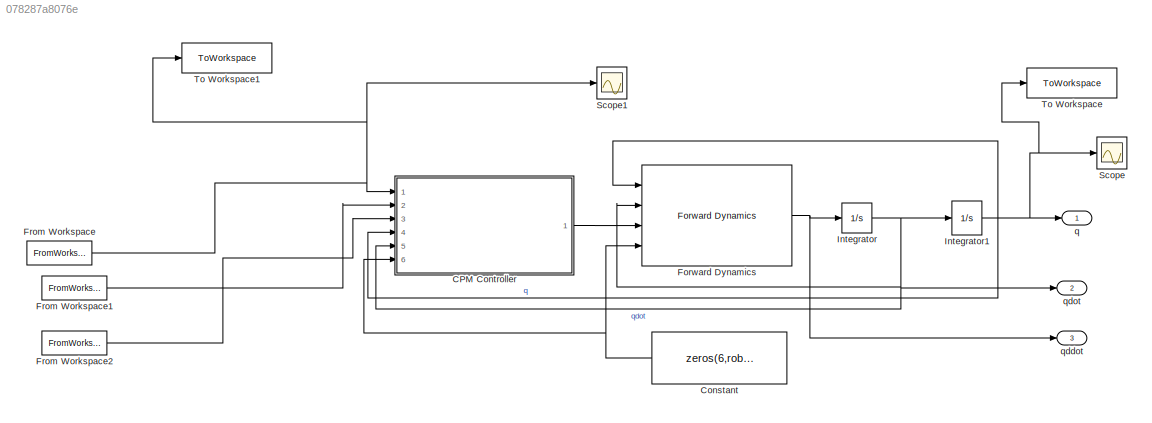
MODEL slx_078287a8076e
KIND model
CONFIG AbsTol = auto
CONFIG EnableMultiTasking = off
CONFIG FixedStep = auto
CONFIG MaxStep = auto
CONFIG MinStep = auto
CONFIG RelTol = 1e-3
CONFIG SampleTimeConstraint = Unconstrained
CONFIG SolverName = VariableStepAuto
CONFIG StartTime = 0.0
CONFIG StopTime = 10.0
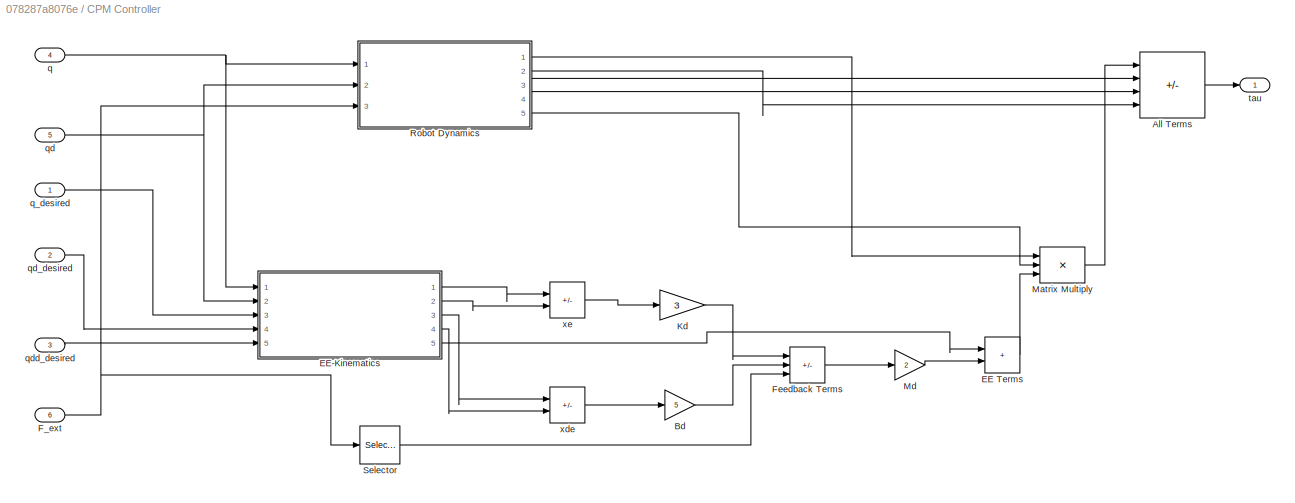
BLOCK [SubSystem] CPM Controller 
  Ports = [6, 1]
  RequestExecContextInheritance = off
BLOCK [Sum] CPM Controller /All Terms
  IconShape = rectangular
  Inputs = |+++-
  Ports = [4, 1]
BLOCK [Gain] CPM Controller /Bd
  Gain = 5
BLOCK [Sum] CPM Controller /EE Terms
  IconShape = rectangular
  Inputs = |++
  Ports = [2, 1]
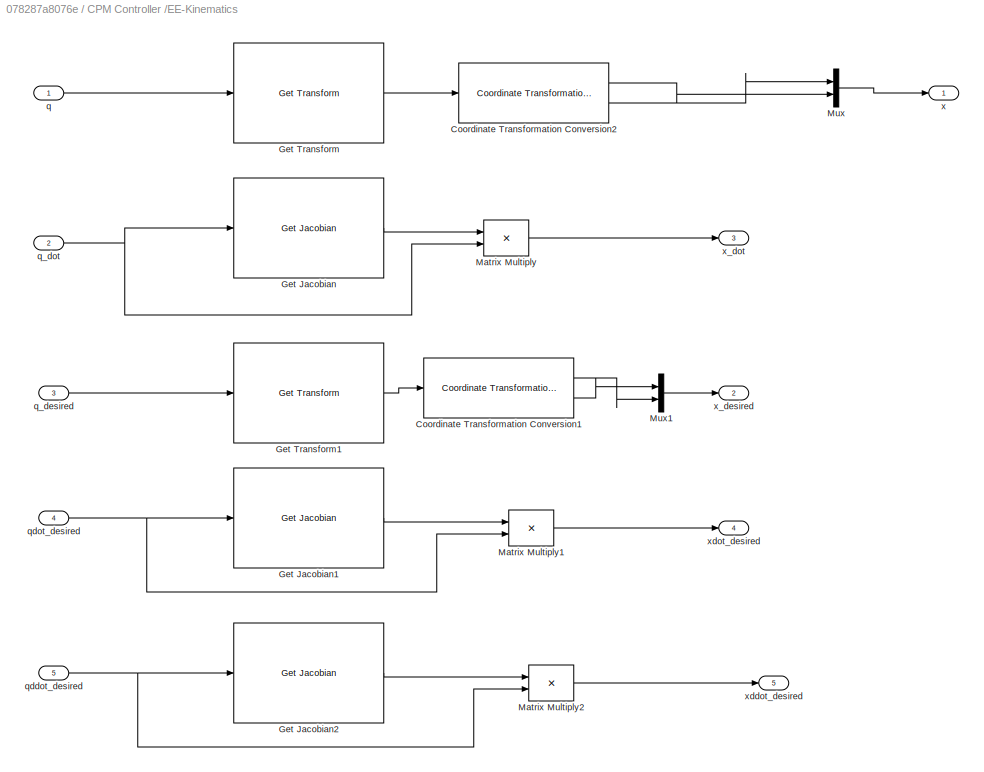
BLOCK [SubSystem] CPM Controller /EE-Kinematics
  Ports = [5, 5]
  RequestExecContextInheritance = off
BLOCK [Reference] CPM Controller /EE-Kinematics/Coordinate Transformation Conversion1  REF=robotcorelib/Coordinate Transformation Conversion
  Ports = [1, 2]
  SourceBlock = robotcorelib/Coordinate Transformation Conversion
  SourceProductBaseCode = NV,RO,RR,UV
  SourceType = robotics.slcore.internal.block.CoordinateTransformationConversion
BLOCK [Reference] CPM Controller /EE-Kinematics/Coordinate Transformation Conversion2  REF=robotcorelib/Coordinate Transformation Conversion
  Ports = [1, 2]
  SourceBlock = robotcorelib/Coordinate Transformation Conversion
  SourceProductBaseCode = NV,RO,RR,UV
  SourceType = robotics.slcore.internal.block.CoordinateTransformationConversion
BLOCK [Reference] CPM Controller /EE-Kinematics/Get Jacobian  REF=robotmaniplib/Get Jacobian
  Ports = [1, 1]
  SourceBlock = robotmaniplib/Get Jacobian
  SourceProductBaseCode = RO
  SourceType = Get Jacobian
BLOCK [Reference] CPM Controller /EE-Kinematics/Get Jacobian1  REF=robotmaniplib/Get Jacobian
  Ports = [1, 1]
  SourceBlock = robotmaniplib/Get Jacobian
  SourceProductBaseCode = RO
  SourceType = Get Jacobian
BLOCK [Reference] CPM Controller /EE-Kinematics/Get Jacobian2  REF=robotmaniplib/Get Jacobian
  Ports = [1, 1]
  SourceBlock = robotmaniplib/Get Jacobian
  SourceProductBaseCode = RO
  SourceType = Get Jacobian
BLOCK [Reference] CPM Controller /EE-Kinematics/Get Transform  REF=robotmaniplib/Get Transform
  Ports = [1, 1]
  SourceBlock = robotmaniplib/Get Transform
  SourceProductBaseCode = RO
  SourceType = Get Transform
BLOCK [Reference] CPM Controller /EE-Kinematics/Get Transform1  REF=robotmaniplib/Get Transform
  Ports = [1, 1]
  SourceBlock = robotmaniplib/Get Transform
  SourceProductBaseCode = RO
  SourceType = Get Transform
BLOCK [Product] CPM Controller /EE-Kinematics/Matrix Multiply
  Multiplication = Matrix(*)
  Ports = [2, 1]
BLOCK [Product] CPM Controller /EE-Kinematics/Matrix Multiply1
  Multiplication = Matrix(*)
  Ports = [2, 1]
BLOCK [Product] CPM Controller /EE-Kinematics/Matrix Multiply2
  Multiplication = Matrix(*)
  Ports = [2, 1]
BLOCK [Mux] CPM Controller /EE-Kinematics/Mux
  DisplayOption = bar
  Inputs = 2
  Ports = [2, 1]
BLOCK [Mux] CPM Controller /EE-Kinematics/Mux1
  DisplayOption = bar
  Inputs = 2
  Ports = [2, 1]
BLOCK [Inport] CPM Controller /EE-Kinematics/q
BLOCK [Inport] CPM Controller /EE-Kinematics/q_desired
  Port = 3
BLOCK [Inport] CPM Controller /EE-Kinematics/q_dot
  Port = 2
BLOCK [Inport] CPM Controller /EE-Kinematics/qddot_desired
  Port = 5
BLOCK [Inport] CPM Controller /EE-Kinematics/qdot_desired
  Port = 4
BLOCK [Outport] CPM Controller /EE-Kinematics/x
BLOCK [Outport] CPM Controller /EE-Kinematics/x_desired
  Port = 2
BLOCK [Outport] CPM Controller /EE-Kinematics/x_dot
  Port = 3
BLOCK [Outport] CPM Controller /EE-Kinematics/xddot_desired
  Port = 5
BLOCK [Outport] CPM Controller /EE-Kinematics/xdot_desired
  Port = 4
BLOCK [Inport] CPM Controller /F_ext
  Port = 6
BLOCK [Sum] CPM Controller /Feedback Terms
  IconShape = rectangular
  Inputs = |---
  Ports = [3, 1]
BLOCK [Gain] CPM Controller /Kd
  Gain = 3
BLOCK [Product] CPM Controller /Matrix Multiply
  Inputs = 3
  Multiplication = Matrix(*)
  Ports = [3, 1]
BLOCK [Gain] CPM Controller /Md
  Gain = 2
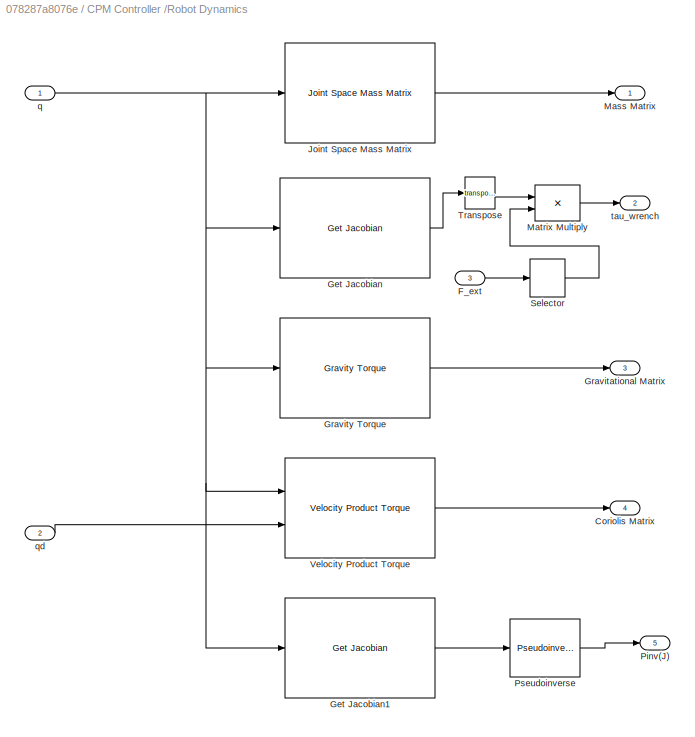
BLOCK [SubSystem] CPM Controller /Robot Dynamics
  Ports = [3, 5]
  RequestExecContextInheritance = off
BLOCK [Outport] CPM Controller /Robot Dynamics/Coriolis Matrix
  Port = 4
BLOCK [Inport] CPM Controller /Robot Dynamics/F_ext
  Port = 3
BLOCK [Reference] CPM Controller /Robot Dynamics/Get Jacobian  REF=robotmaniplib/Get Jacobian
  Ports = [1, 1]
  SourceBlock = robotmaniplib/Get Jacobian
  SourceProductBaseCode = RO
  SourceType = Get Jacobian
BLOCK [Reference] CPM Controller /Robot Dynamics/Get Jacobian1  REF=robotmaniplib/Get Jacobian
  Ports = [1, 1]
  SourceBlock = robotmaniplib/Get Jacobian
  SourceProductBaseCode = RO
  SourceType = Get Jacobian
BLOCK [Outport] CPM Controller /Robot Dynamics/Gravitational Matrix
  Port = 3
BLOCK [Reference] CPM Controller /Robot Dynamics/Gravity Torque  REF=robotmaniplib/Gravity Torque
  Ports = [1, 1]
  SourceBlock = robotmaniplib/Gravity Torque
  SourceProductBaseCode = RO
  SourceType = Gravity Torque
BLOCK [Reference] CPM Controller /Robot Dynamics/Joint Space Mass Matrix  REF=robotmaniplib/Joint Space Mass Matrix
  Ports = [1, 1]
  SourceBlock = robotmaniplib/Joint Space Mass Matrix
  SourceProductBaseCode = RO
  SourceType = Joint Space Mass Matrix
BLOCK [Outport] CPM Controller /Robot Dynamics/Mass Matrix
BLOCK [Product] CPM Controller /Robot Dynamics/Matrix Multiply
  Multiplication = Matrix(*)
  Ports = [2, 1]
BLOCK [Outport] CPM Controller /Robot Dynamics/Pinv(J)
  Port = 5
BLOCK [Reference] CPM Controller /Robot Dynamics/Pseudoinverse  REF=dspinverses/Pseudoinverse
  Ports = [1, 1]
  SourceBlock = dspinverses/Pseudoinverse
  SourceProductBaseCode = DS
  SourceType = Pseudoinverse
BLOCK [Selector] CPM Controller /Robot Dynamics/Selector
  IndexOptions = Index vector (dialog),Index vector (dialog)
  Indices = [1 2 3 4 5 6],2
  InputPortWidth = 3
  NumberOfDimensions = 2
  OutputSizes = 1,1
  Ports = [1, 1]
BLOCK [Math] CPM Controller /Robot Dynamics/Transpose
  Operator = transpose
  Ports = [1, 1]
BLOCK [Reference] CPM Controller /Robot Dynamics/Velocity Product Torque  REF=robotmaniplib/Velocity Product Torque
  Ports = [2, 1]
  SourceBlock = robotmaniplib/Velocity Product Torque
  SourceProductBaseCode = RO
  SourceType = Velocity Product Torque
BLOCK [Inport] CPM Controller /Robot Dynamics/q
BLOCK [Inport] CPM Controller /Robot Dynamics/qd
  Port = 2
BLOCK [Outport] CPM Controller /Robot Dynamics/tau_wrench 
  Port = 2
BLOCK [Selector] CPM Controller /Selector
  IndexOptions = Index vector (dialog),Index vector (dialog)
  Indices = [1 2 3 4 5 6],2
  InputPortWidth = 3
  NumberOfDimensions = 2
  OutputSizes = 1,1
  Ports = [1, 1]
BLOCK [Inport] CPM Controller /q
  Port = 4
BLOCK [Inport] CPM Controller /q_desired
BLOCK [Inport] CPM Controller /qd
  Port = 5
BLOCK [Inport] CPM Controller /qd_desired
  Port = 2
BLOCK [Inport] CPM Controller /qdd_desired
  Port = 3
BLOCK [Outport] CPM Controller /tau
BLOCK [Sum] CPM Controller /xde
  IconShape = rectangular
  Inputs = |+-
  Ports = [2, 1]
BLOCK [Sum] CPM Controller /xe
  IconShape = rectangular
  Inputs = |+-
  Ports = [2, 1]
BLOCK [Constant] Constant
  Value = zeros(6,robot.NumBodies)
BLOCK [Reference] Forward Dynamics  REF=robotmaniplib/Forward Dynamics
  Ports = [4, 1]
  SourceBlock = robotmaniplib/Forward Dynamics
  SourceProductBaseCode = RO
  SourceType = Forward Dynamics
BLOCK [FromWorkspace] From Workspace
  SampleTime = -1
  VariableName = q_desired
BLOCK [FromWorkspace] From Workspace1
  SampleTime = -1
  VariableName = qd_desired
BLOCK [FromWorkspace] From Workspace2
  SampleTime = -1
  VariableName = qdd_desired
BLOCK [Integrator] Integrator
  Ports = [1, 1]
BLOCK [Integrator] Integrator1
  Ports = [1, 1]
BLOCK [Scope] Scope
  Floating = off
  NumInputPorts = 1
  Ports = [1]
  ScopeSpecificationString = Simulink.scopes.TimeScopeBlockCfg('CurrentConfiguration', extmgr.ConfigurationSet(extmgr.Configuration('Core','General UI',true),extmgr.Configuration('Core','Source UI',true),extmgr.Configuration('Sources','WiredSimulink',true),extmgr.Configuration('Visuals','Time Domain',true,'SerializedDisplays',{struct('MinYLimReal','-7.43249','MaxYLimReal','4.95798','YLabelReal','','MinYLimMag','0.00000','MaxY...<+1394ch>
BLOCK [Scope] Scope1
  Floating = off
  NumInputPorts = 1
  Ports = [1]
  ScopeSpecificationString = Simulink.scopes.TimeScopeBlockCfg('CurrentConfiguration', extmgr.ConfigurationSet(extmgr.Configuration('Core','General UI',true),extmgr.Configuration('Core','Source UI',true),extmgr.Configuration('Sources','WiredSimulink',true,'DataLoggingVariableName','ScopeData1'),extmgr.Configuration('Visuals','Time Domain',true,'SerializedDisplays',{struct('MinYLimReal','-0.3524','MaxYLimReal','0.03916','YLabe...<+1425ch>
BLOCK [ToWorkspace] To Workspace
  FixptAsFi = on
  MaxDataPoints = inf
  Ports = [1]
  SampleTime = -1
  SaveFormat = Timeseries
  VariableName = q_cpm
BLOCK [ToWorkspace] To Workspace1
  FixptAsFi = on
  MaxDataPoints = inf
  Ports = [1]
  SampleTime = -1
  SaveFormat = Timeseries
  VariableName = q_desired
BLOCK [Outport] q
BLOCK [Outport] qddot
  Port = 3
BLOCK [Outport] qdot
  Port = 2
LINE CPM Controller /All Terms:1 -> CPM Controller /tau:1
LINE CPM Controller /Bd:1 -> CPM Controller /Feedback Terms:2
LINE CPM Controller /EE Terms:1 -> CPM Controller /Matrix Multiply:3
LINE CPM Controller /EE-Kinematics/Coordinate Transformation Conversion1:1 -> CPM Controller /EE-Kinematics/Mux1:2
LINE CPM Controller /EE-Kinematics/Coordinate Transformation Conversion1:2 -> CPM Controller /EE-Kinematics/Mux1:1
LINE CPM Controller /EE-Kinematics/Coordinate Transformation Conversion2:1 -> CPM Controller /EE-Kinematics/Mux:2
LINE CPM Controller /EE-Kinematics/Coordinate Transformation Conversion2:2 -> CPM Controller /EE-Kinematics/Mux:1
LINE CPM Controller /EE-Kinematics/Get Jacobian1:1 -> CPM Controller /EE-Kinematics/Matrix Multiply1:1
LINE CPM Controller /EE-Kinematics/Get Jacobian2:1 -> CPM Controller /EE-Kinematics/Matrix Multiply2:1
LINE CPM Controller /EE-Kinematics/Get Jacobian:1 -> CPM Controller /EE-Kinematics/Matrix Multiply:1
LINE CPM Controller /EE-Kinematics/Get Transform1:1 -> CPM Controller /EE-Kinematics/Coordinate Transformation Conversion1:1
LINE CPM Controller /EE-Kinematics/Get Transform:1 -> CPM Controller /EE-Kinematics/Coordinate Transformation Conversion2:1
LINE CPM Controller /EE-Kinematics/Matrix Multiply1:1 -> CPM Controller /EE-Kinematics/xdot_desired:1
LINE CPM Controller /EE-Kinematics/Matrix Multiply2:1 -> CPM Controller /EE-Kinematics/xddot_desired:1
LINE CPM Controller /EE-Kinematics/Matrix Multiply:1 -> CPM Controller /EE-Kinematics/x_dot:1
LINE CPM Controller /EE-Kinematics/Mux1:1 -> CPM Controller /EE-Kinematics/x_desired:1
LINE CPM Controller /EE-Kinematics/Mux:1 -> CPM Controller /EE-Kinematics/x:1
LINE CPM Controller /EE-Kinematics/q:1 -> CPM Controller /EE-Kinematics/Get Transform:1
LINE CPM Controller /EE-Kinematics/q_desired:1 -> CPM Controller /EE-Kinematics/Get Transform1:1
NET CPM Controller /EE-Kinematics/q_dot:1 -> CPM Controller /EE-Kinematics/Get Jacobian:1, CPM Controller /EE-Kinematics/Matrix Multiply:2
NET CPM Controller /EE-Kinematics/qddot_desired:1 -> CPM Controller /EE-Kinematics/Get Jacobian2:1, CPM Controller /EE-Kinematics/Matrix Multiply2:2
NET CPM Controller /EE-Kinematics/qdot_desired:1 -> CPM Controller /EE-Kinematics/Get Jacobian1:1, CPM Controller /EE-Kinematics/Matrix Multiply1:2
LINE CPM Controller /EE-Kinematics:1 -> CPM Controller /xe:1
LINE CPM Controller /EE-Kinematics:2 -> CPM Controller /xe:2
LINE CPM Controller /EE-Kinematics:3 -> CPM Controller /xde:1
LINE CPM Controller /EE-Kinematics:4 -> CPM Controller /xde:2
LINE CPM Controller /EE-Kinematics:5 -> CPM Controller /EE Terms:1
NET CPM Controller /F_ext:1 -> CPM Controller /Robot Dynamics:3, CPM Controller /Selector:1
LINE CPM Controller /Feedback Terms:1 -> CPM Controller /Md:1
LINE CPM Controller /Kd:1 -> CPM Controller /Feedback Terms:1
LINE CPM Controller /Matrix Multiply:1 -> CPM Controller /All Terms:1
LINE CPM Controller /Md:1 -> CPM Controller /EE Terms:2
LINE CPM Controller /Robot Dynamics/F_ext:1 -> CPM Controller /Robot Dynamics/Selector:1
LINE CPM Controller /Robot Dynamics/Get Jacobian1:1 -> CPM Controller /Robot Dynamics/Pseudoinverse:1
LINE CPM Controller /Robot Dynamics/Get Jacobian:1 -> CPM Controller /Robot Dynamics/Transpose:1
LINE CPM Controller /Robot Dynamics/Gravity Torque:1 -> CPM Controller /Robot Dynamics/Gravitational Matrix:1
LINE CPM Controller /Robot Dynamics/Joint Space Mass Matrix:1 -> CPM Controller /Robot Dynamics/Mass Matrix:1
LINE CPM Controller /Robot Dynamics/Matrix Multiply:1 -> CPM Controller /Robot Dynamics/tau_wrench :1
LINE CPM Controller /Robot Dynamics/Pseudoinverse:1 -> CPM Controller /Robot Dynamics/Pinv(J):1
LINE CPM Controller /Robot Dynamics/Selector:1 -> CPM Controller /Robot Dynamics/Matrix Multiply:2
LINE CPM Controller /Robot Dynamics/Transpose:1 -> CPM Controller /Robot Dynamics/Matrix Multiply:1
LINE CPM Controller /Robot Dynamics/Velocity Product Torque:1 -> CPM Controller /Robot Dynamics/Coriolis Matrix:1
NET CPM Controller /Robot Dynamics/q:1 -> CPM Controller /Robot Dynamics/Get Jacobian1:1, CPM Controller /Robot Dynamics/Get Jacobian:1, CPM Controller /Robot Dynamics/Gravity Torque:1, CPM Controller /Robot Dynamics/Joint Space Mass Matrix:1, CPM Controller /Robot Dynamics/Velocity Product Torque:1
LINE CPM Controller /Robot Dynamics/qd:1 -> CPM Controller /Robot Dynamics/Velocity Product Torque:2
LINE CPM Controller /Robot Dynamics:1 -> CPM Controller /Matrix Multiply:1
LINE CPM Controller /Robot Dynamics:2 -> CPM Controller /All Terms:4
LINE CPM Controller /Robot Dynamics:3 -> CPM Controller /All Terms:2
LINE CPM Controller /Robot Dynamics:4 -> CPM Controller /All Terms:3
LINE CPM Controller /Robot Dynamics:5 -> CPM Controller /Matrix Multiply:2
LINE CPM Controller /Selector:1 -> CPM Controller /Feedback Terms:3
NET CPM Controller /q:1 -> CPM Controller /EE-Kinematics:1, CPM Controller /Robot Dynamics:1
LINE CPM Controller /q_desired:1 -> CPM Controller /EE-Kinematics:3
NET CPM Controller /qd:1 -> CPM Controller /EE-Kinematics:2, CPM Controller /Robot Dynamics:2
LINE CPM Controller /qd_desired:1 -> CPM Controller /EE-Kinematics:4
LINE CPM Controller /qdd_desired:1 -> CPM Controller /EE-Kinematics:5
LINE CPM Controller /xde:1 -> CPM Controller /Bd:1
LINE CPM Controller /xe:1 -> CPM Controller /Kd:1
LINE CPM Controller :1 -> Forward Dynamics:3
NET Constant:1 -> CPM Controller :6, Forward Dynamics:4
NET Forward Dynamics:1 -> Integrator:1, qddot:1
LINE From Workspace1:1 -> CPM Controller :2
LINE From Workspace2:1 -> CPM Controller :3
NET From Workspace:1 -> CPM Controller :1, Scope1:1, To Workspace1:1
NET Integrator1:1 -> CPM Controller :4, Forward Dynamics:1, Scope:1, To Workspace:1, q:1
NET Integrator:1 -> CPM Controller :5, Forward Dynamics:2, Integrator1:1, qdot:1
note: NET lines group one-source signal fan-out (src -> all destinations, sorted); 1:1 wires keep LINE
